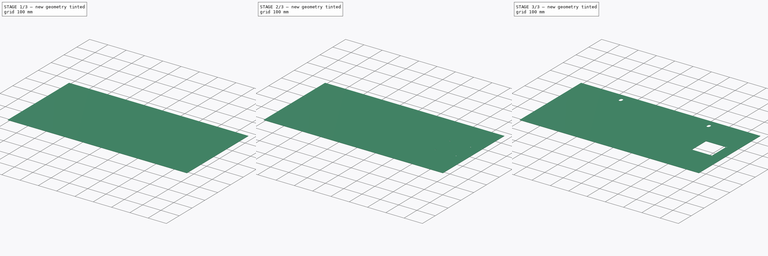
[diagram: build sequence overview — one tinted view per stage of 3, left to right]
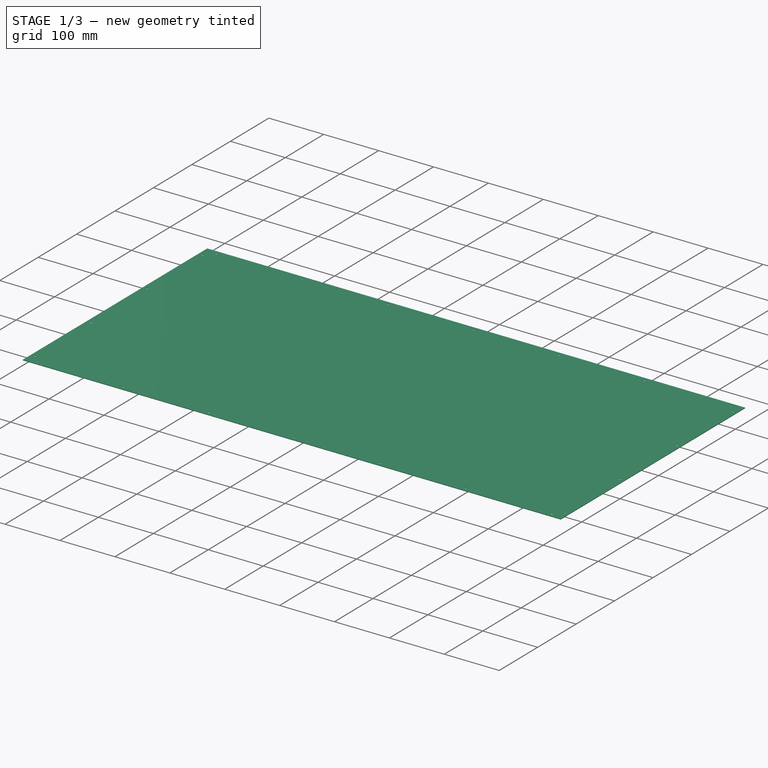
[diagram: stage 1 of 3 — iso view after this stage's code; geometry added in this stage tinted green]
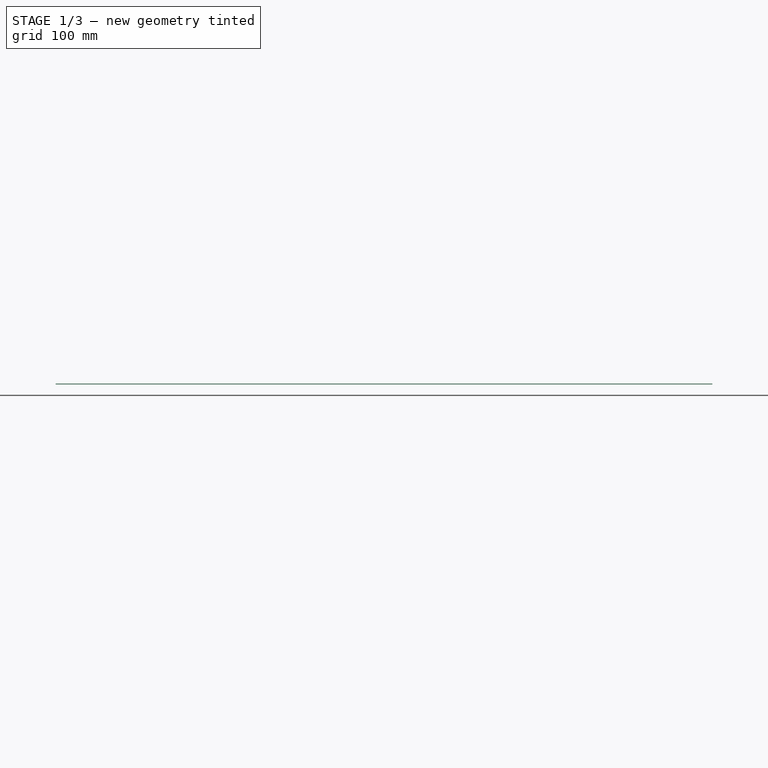
[diagram: stage 1 of 3 — front view after this stage's code; geometry added in this stage tinted green]
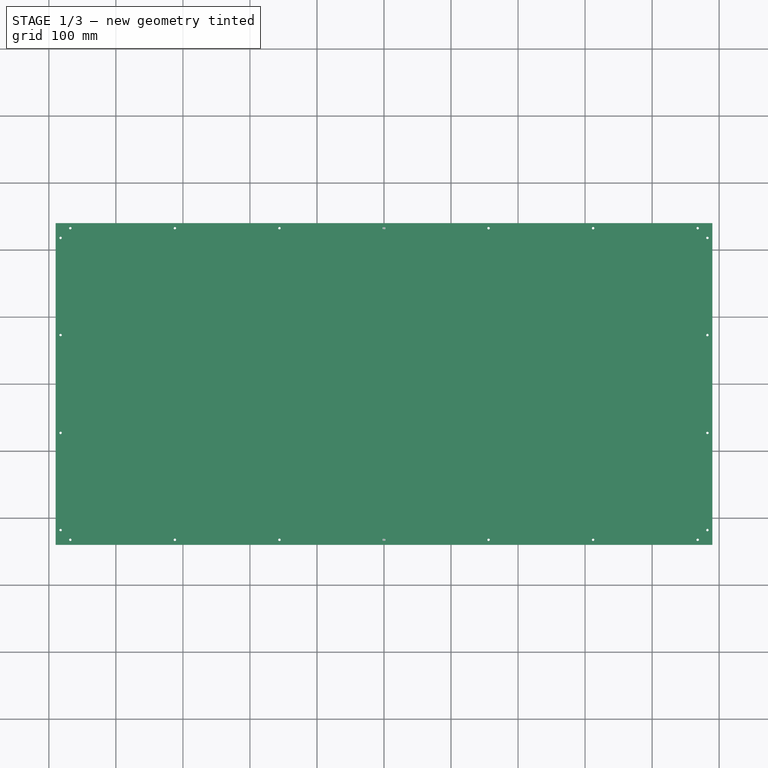
[diagram: stage 1 of 3 — top view after this stage's code; geometry added in this stage tinted green]
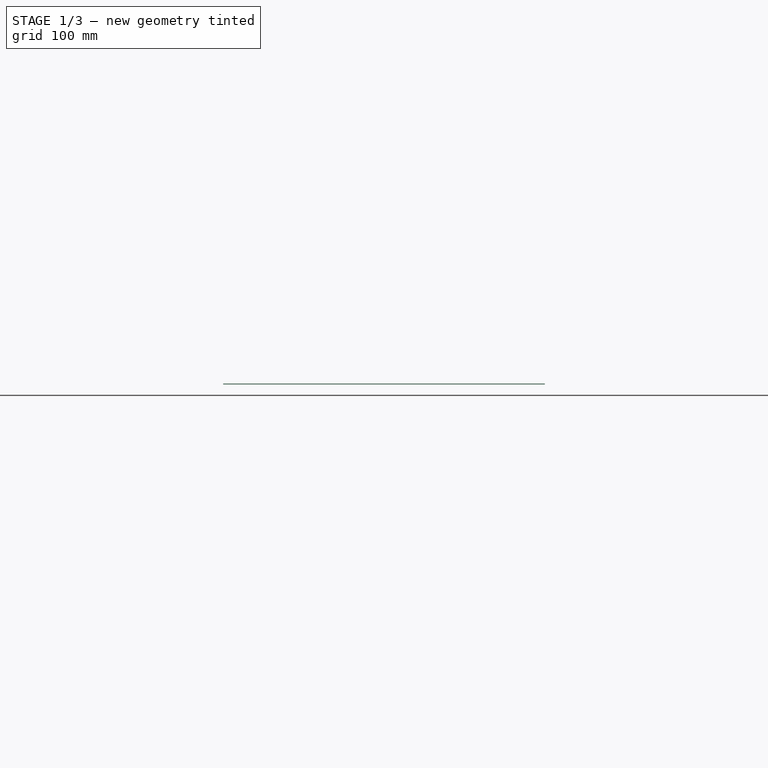
[diagram: stage 1 of 3 — right view after this stage's code; geometry added in this stage tinted green]
FCSTD DOCUMENT  (FreeCAD 0.20R29603 (Git))
Label: RearPanel_Clean
License: All rights reserved
LicenseURL: http://en.wikipedia.org/wiki/All_rights_reserved
objects: Sketcher::SketchObject×5, PartDesign::Pocket×4, PartDesign::SubShapeBinder×3, PartDesign::Pad×1, PartDesign::Body×1
note: 19 computed .brp shape members not serialized (recipe doc carries the construction recipe); baked Part::Feature solids carry a one-line shape summary decoded from their .brp

FEATURE [Sketcher::SketchObject] Sketch
  FullyConstrained = true
  MapMode = 5
  Support = -> [XY_Plane]
  sketch-geometry (4):
    g0: LineSegment StartX=-490 StartY=240 StartZ=0 EndX=490 EndY=240 EndZ=0
    g1: LineSegment StartX=490 StartY=240 StartZ=0 EndX=490 EndY=-240 EndZ=0
    g2: LineSegment StartX=490 StartY=-240 StartZ=0 EndX=-490 EndY=-240 EndZ=0
    g3: LineSegment StartX=-490 StartY=-240 StartZ=0 EndX=-490 EndY=240 EndZ=0
  constraints (10):
    c: Coincident(g0,g1)
    c: Coincident(g1,g2)
    c: Coincident(g2,g3)
    c: Coincident(g3,g0)
    c: Horizontal(g2)
    c: Vertical(g1)
    c: Symmetric(g0,g2,g-1)
    c: Symmetric(g0,g0,g-2)
    c: DistanceX(g0,g0) = 980
    c: DistanceY(g2,g0) = 480
FEATURE [PartDesign::Pad] Pad  label="Face"
  Direction = (0,0,1)
  Length = 1
  Length2 = 10
  Profile = -> Sketch
  ReferenceAxis = -> Sketch [N_Axis]
  Type = 0
FEATURE [Sketcher::SketchObject] Sketch001
  ExternalGeometry = -> [Pad]
  FullyConstrained = true
  MapMode = 5
  Placement = pos=(0,0,1) rot=(0,0,1;0rad)
  Support = -> [Pad]
  sketch-geometry (22):
    g0: Circle CenterX=0 CenterY=232.5 CenterZ=0 NormalX=0 NormalY=0 NormalZ=1 AngleXU=0 Radius=1.8
    g1: Circle CenterX=156 CenterY=232.5 CenterZ=0 NormalX=0 NormalY=0 NormalZ=1 AngleXU=0 Radius=1.8
    g2: Circle CenterX=312 CenterY=232.5 CenterZ=0 NormalX=0 NormalY=0 NormalZ=1 AngleXU=0 Radius=1.8
    g3: Circle CenterX=468 CenterY=232.5 CenterZ=0 NormalX=0 NormalY=0 NormalZ=1 AngleXU=0 Radius=1.8
    g4: Circle CenterX=-156 CenterY=232.5 CenterZ=0 NormalX=0 NormalY=0 NormalZ=1 AngleXU=0 Radius=1.8
    g5: Circle CenterX=-312 CenterY=232.5 CenterZ=0 NormalX=0 NormalY=0 NormalZ=1 AngleXU=0 Radius=1.8
    g6: Circle CenterX=-468 CenterY=232.5 CenterZ=0 NormalX=0 NormalY=0 NormalZ=1 AngleXU=0 Radius=1.8
    g7: Circle CenterX=482.5 CenterY=73 CenterZ=0 NormalX=0 NormalY=0 NormalZ=1 AngleXU=0 Radius=1.8
    g8: Circle CenterX=482.5 CenterY=218 CenterZ=0 NormalX=0 NormalY=0 NormalZ=1 AngleXU=0 Radius=1.8
    g9: Circle CenterX=-482.5 CenterY=218 CenterZ=0 NormalX=0 NormalY=0 NormalZ=1 AngleXU=0 Radius=1.8
    g10: Circle CenterX=-482.5 CenterY=73 CenterZ=0 NormalX=0 NormalY=0 NormalZ=1 AngleXU=0 Radius=1.8
    g11: Circle CenterX=-468 CenterY=-232.5 CenterZ=0 NormalX=0 NormalY=0 NormalZ=1 AngleXU=0 Radius=1.8
    g12: Circle CenterX=-312 CenterY=-232.5 CenterZ=0 NormalX=0 NormalY=0 NormalZ=1 AngleXU=0 Radius=1.8
    g13: Circle CenterX=-156 CenterY=-232.5 CenterZ=0 NormalX=0 NormalY=0 NormalZ=1 AngleXU=0 Radius=1.8
    g14: Circle CenterX=0 CenterY=-232.5 CenterZ=0 NormalX=0 NormalY=0 NormalZ=1 AngleXU=0 Radius=1.8
    g15: Circle CenterX=156 CenterY=-232.5 CenterZ=0 NormalX=0 NormalY=0 NormalZ=1 AngleXU=0 Radius=1.8
    g16: Circle CenterX=312 CenterY=-232.5 CenterZ=0 NormalX=0 NormalY=0 NormalZ=1 AngleXU=0 Radius=1.8
    g17: Circle CenterX=468 CenterY=-232.5 CenterZ=0 NormalX=0 NormalY=0 NormalZ=1 AngleXU=0 Radius=1.8
    g18: Circle CenterX=482.5 CenterY=-218 CenterZ=0 NormalX=0 NormalY=0 NormalZ=1 AngleXU=0 Radius=1.8
    g19: Circle CenterX=-482.5 CenterY=-218 CenterZ=0 NormalX=0 NormalY=0 NormalZ=1 AngleXU=0 Radius=1.8
    g20: Circle CenterX=482.5 CenterY=-73 CenterZ=0 NormalX=0 NormalY=0 NormalZ=1 AngleXU=0 Radius=1.8
    g21: Circle CenterX=-482.5 CenterY=-73 CenterZ=0 NormalX=0 NormalY=0 NormalZ=1 AngleXU=0 Radius=1.8
  constraints (66):
    c: PointOnObject(g0,g-2)
    c: DistanceY(g0,g-5) = 7.5
    c: Diameter(g0) = 3.6
    c: Horizontal(g1,g0)
    c: Equal(g1,g0)
    c: DistanceX(g0,g1) = 156
    c: Horizontal(g2,g1)
    c: Equal(g2,g1)
    c: DistanceX(g1,g2) = 156
    c: Horizontal(g3,g2)
    c: Equal(g2,g3)
    c: DistanceX(g2,g3) = 156
    c: Equal(g5,g4)
    c: Equal(g5,g6)
    c: Horizontal(g4,g0)
    c: Horizontal(g4,g5)
    c: Horizontal(g5,g6)
    c: DistanceX(g4,g0) = 156
    c: DistanceX(g5,g4) = 156
    c: DistanceX(g6,g5) = 156
    c: DistanceX(g7,g-5) = 7.5
    c: Diameter(g7) = 3.6
    c: Vertical(g7,g8)
    c: Equal(g8,g7)
    c: Diameter(g10) = 3.6
    c: Equal(g9,g10)
    c: DistanceX(g-4,g10) = 7.5
    c: Vertical(g9,g10)
    c: DistanceY(g10,g9) = 145
    c: Diameter(g14) = 3.6
    c: Equal(g15,g14)
    c: Equal(g16,g15)
    c: Equal(g16,g17)
    c: Equal(g12,g13)
    c: Equal(g12,g11)
    c: Horizontal(g11,g12)
    c: DistanceX(g11,g12) = 156
    c: Horizontal(g12,g13)
    c: DistanceX(g12,g13) = 156
    c: Horizontal(g13,g14)
    c: DistanceX(g13,g14) = 156
    c: Horizontal(g14,g15)
    c: DistanceX(g14,g15) = 156
    c: Horizontal(g15,g16)
    c: DistanceX(g15,g16) = 156
    c: Horizontal(g16,g17)
    c: DistanceX(g16,g17) = 156
    c: Vertical(g7,g18)
    c: Equal(g18,g7)
    c: DistanceY(g-6,g14) = 7.5
    c: Equal(g0,g4)
    c: PointOnObject(g14,g-2)
    c: Equal(g14,g13)
    c: DistanceY(g9,g-4) = 22
    c: DistanceY(g-6,g19) = 22
    c: DistanceY(g8,g-5) = 22
    c: DistanceY(g7,g8) = 145
    c: DistanceY(g-6,g18) = 22
    c: Equal(g7,g20)
    c: Vertical(g20,g7)
    c: DistanceY(g18,g20) = 145
    c: Equal(g10,g21)
    c: Equal(g21,g19)
    c: Vertical(g10,g21)
    c: Vertical(g21,g19)
    c: DistanceY(g19,g21) = 145
FEATURE [PartDesign::Pocket] Pocket  label="FurosFechamento"
  BaseFeature = -> Pad
  Direction = (0,0,-1)
  Length = 5
  Length2 = 5
  Profile = -> Sketch001
  ReferenceAxis = -> Sketch001 [N_Axis]
  Type = 1
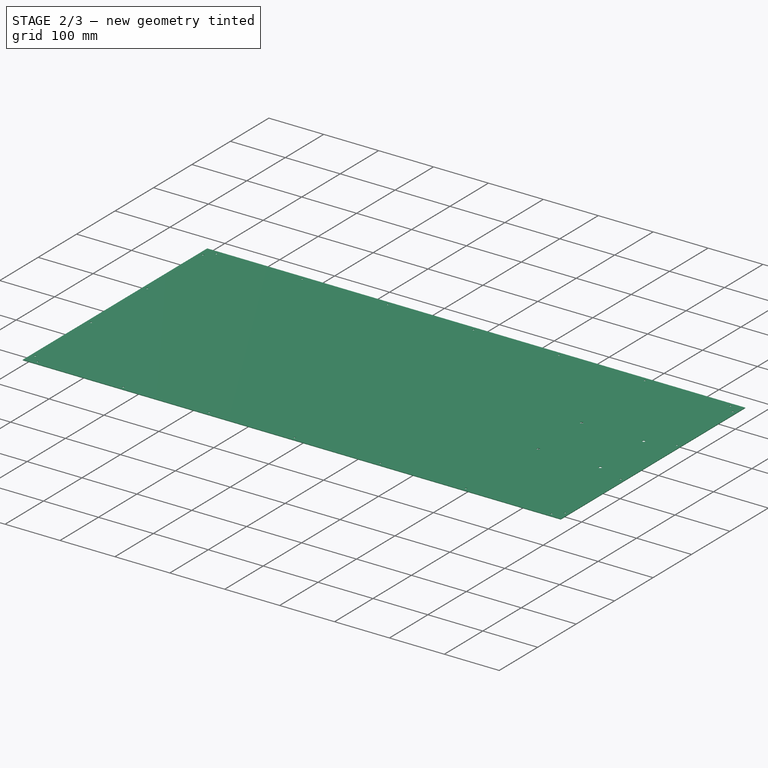
[diagram: stage 2 of 3 — iso view after this stage's code; geometry added in this stage tinted green]
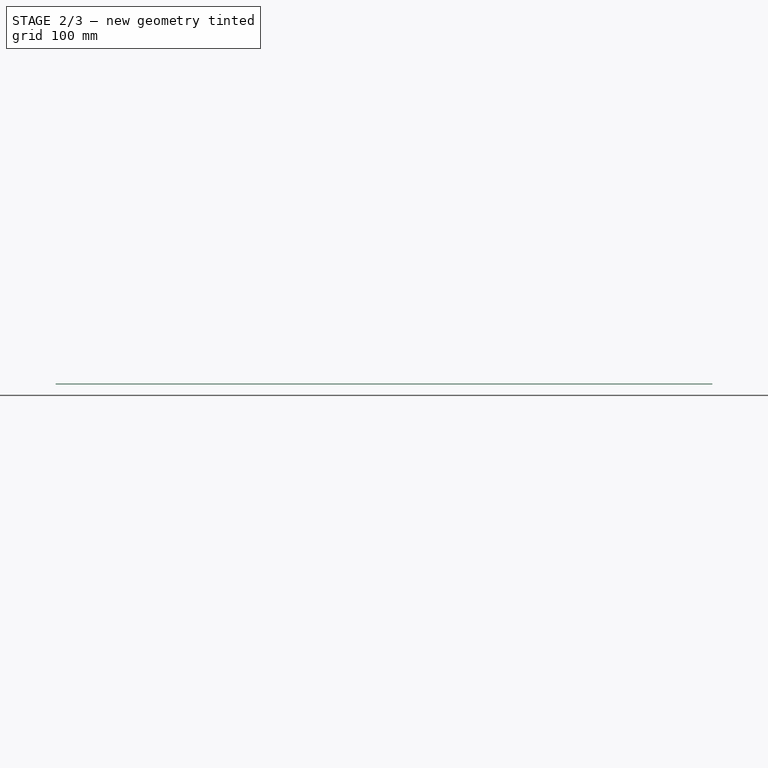
[diagram: stage 2 of 3 — front view after this stage's code; geometry added in this stage tinted green]
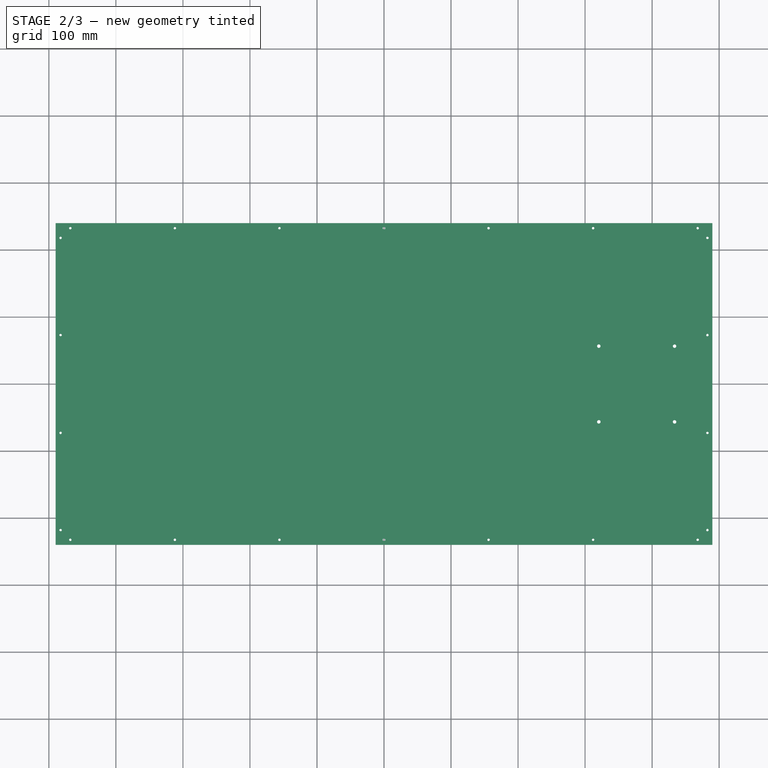
[diagram: stage 2 of 3 — top view after this stage's code; geometry added in this stage tinted green]
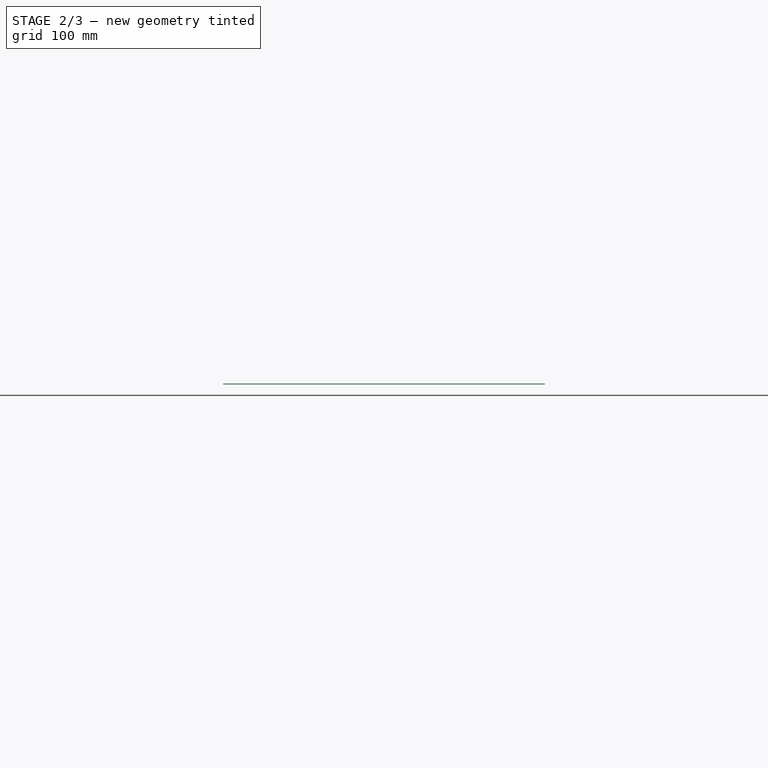
[diagram: stage 2 of 3 — right view after this stage's code; geometry added in this stage tinted green]
FEATURE [PartDesign::SubShapeBinder] Binder  label="BinderRasgo"
  BindCopyOnChange = 0
  BindMode = 0
  ClaimChildren = false
  Context = -> Body [Binder.]
  Fuse = false
  MakeFace = true
  OffsetFill = false
  OffsetIntersection = false
  OffsetJoinType = 0
  OffsetOpenResult = false
  PartialLoad = false
  Relative = true
  _Version = 2
FEATURE [Sketcher::SketchObject] Sketch029
  ExternalGeometry = -> [Binder]
  FullyConstrained = true
  MapMode = 5
  Placement = pos=(0,0,1) rot=(0,0,1;0rad)
  Support = -> [Pocket]
  sketch-geometry (8):
    g0: ArcOfCircle CenterX=327 CenterY=50 CenterZ=0 NormalX=0 NormalY=0 NormalZ=1 AngleXU=0 Radius=5 StartAngle=1.5708 EndAngle=3.14159
    g1: ArcOfCircle CenterX=427 CenterY=50 CenterZ=0 NormalX=0 NormalY=0 NormalZ=1 AngleXU=0 Radius=5 StartAngle=5e-16 EndAngle=1.5708
    g2: ArcOfCircle CenterX=427 CenterY=-50 CenterZ=0 NormalX=0 NormalY=0 NormalZ=1 AngleXU=0 Radius=5 StartAngle=4.71239 EndAngle=6.28319
    g3: ArcOfCircle CenterX=327 CenterY=-50 CenterZ=0 NormalX=0 NormalY=0 NormalZ=1 AngleXU=0 Radius=5 StartAngle=3.14159 EndAngle=4.71239
    g4: LineSegment StartX=322 StartY=-50 StartZ=0 EndX=322 EndY=50 EndZ=0
    g5: LineSegment StartX=327 StartY=-55 StartZ=0 EndX=427 EndY=-55 EndZ=0
    g6: LineSegment StartX=432 StartY=-50 StartZ=0 EndX=432 EndY=50 EndZ=0
    g7: LineSegment StartX=327 StartY=55 StartZ=0 EndX=427 EndY=55 EndZ=0
  constraints (19):
    c: Coincident(g0,g-3)
    c: Coincident(g2,g-4)
    c: Equal(g0,g1)
    c: Equal(g1,g2)
    c: Equal(g2,g3)
    c: Horizontal(g2,g3)
    c: Vertical(g3,g0)
    c: Horizontal(g0,g1)
    c: Vertical(g1,g2)
    c: Vertical(g4)
    c: Diameter(g0) = 10
    c: Tangent(g2,g6) = -1.5708
    c: Tangent(g2,g5) = -1.5708
    c: Tangent(g1,g6) = -1.5708
    c: Coincident(g0,g4)
    c: Tangent(g0,g7) = 1.5708
    c: Tangent(g3,g5) = -1.5708
    c: Tangent(g3,g4) = 1.5708
    c: Tangent(g1,g7) = 1.5708
FEATURE [PartDesign::SubShapeBinder] Binder002  label="BinderFurosPocket"
  BindCopyOnChange = 0
  BindMode = 0
  ClaimChildren = false
  Context = -> Body [Binder002.]
  Fuse = false
  MakeFace = true
  OffsetFill = false
  OffsetIntersection = false
  OffsetJoinType = 0
  OffsetOpenResult = false
  PartialLoad = false
  Relative = true
  _Version = 2
FEATURE [Sketcher::SketchObject] Sketch030
  ExternalGeometry = -> [Binder002]
  FullyConstrained = false
  MapMode = 5
  Placement = pos=(0,0,1) rot=(0,0,1;0rad)
  sketch-geometry (4):
    g0: Circle CenterX=320.5 CenterY=-56.5 CenterZ=0 NormalX=0 NormalY=0 NormalZ=1 AngleXU=0 Radius=2.6
    g1: Circle CenterX=433.5 CenterY=-56.5 CenterZ=0 NormalX=0 NormalY=0 NormalZ=1 AngleXU=0 Radius=2.6
    g2: Circle CenterX=320.5 CenterY=56.5 CenterZ=0 NormalX=0 NormalY=0 NormalZ=1 AngleXU=0 Radius=2.6
    g3: Circle CenterX=433.5 CenterY=56.5 CenterZ=0 NormalX=0 NormalY=0 NormalZ=1 AngleXU=0 Radius=2.6
  constraints (7):
    c: Coincident(g0,g-5)
    c: Coincident(g1,g-6)
    c: Coincident(g2,g-4)
    c: Coincident(g3,g-3)
    c: Equal(g3,g2)
    c: Equal(g2,g1)
    c: Equal(g1,g0)
FEATURE [PartDesign::Pocket] Pocket018
  BaseFeature = -> Pocket
  Direction = (0,0,-1)
  Length = 5
  Length2 = 5
  Profile = -> Sketch030
  ReferenceAxis = -> Sketch030 [N_Axis]
  Type = 1
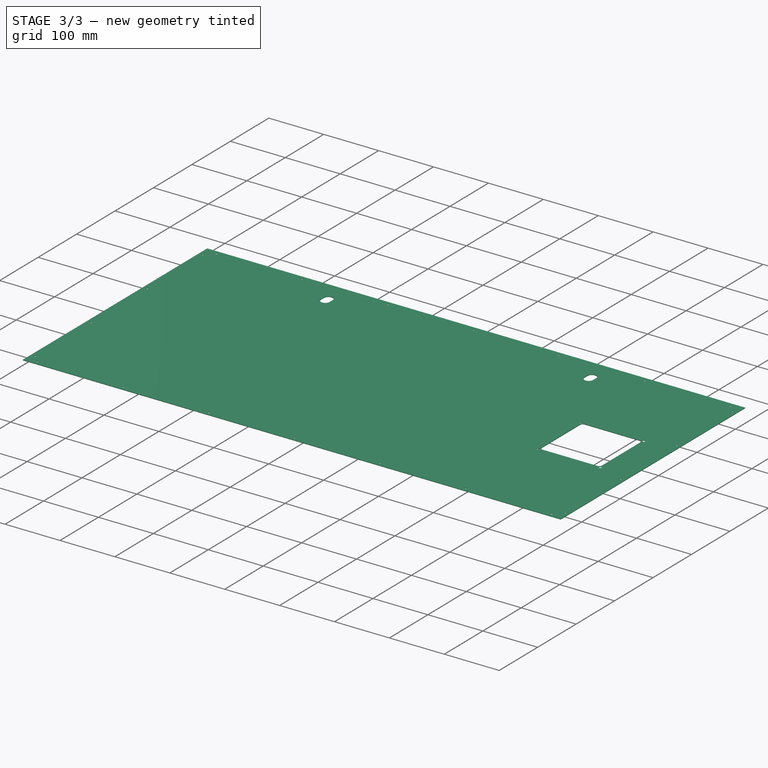
[diagram: stage 3 of 3 — iso view after this stage's code; geometry added in this stage tinted green]
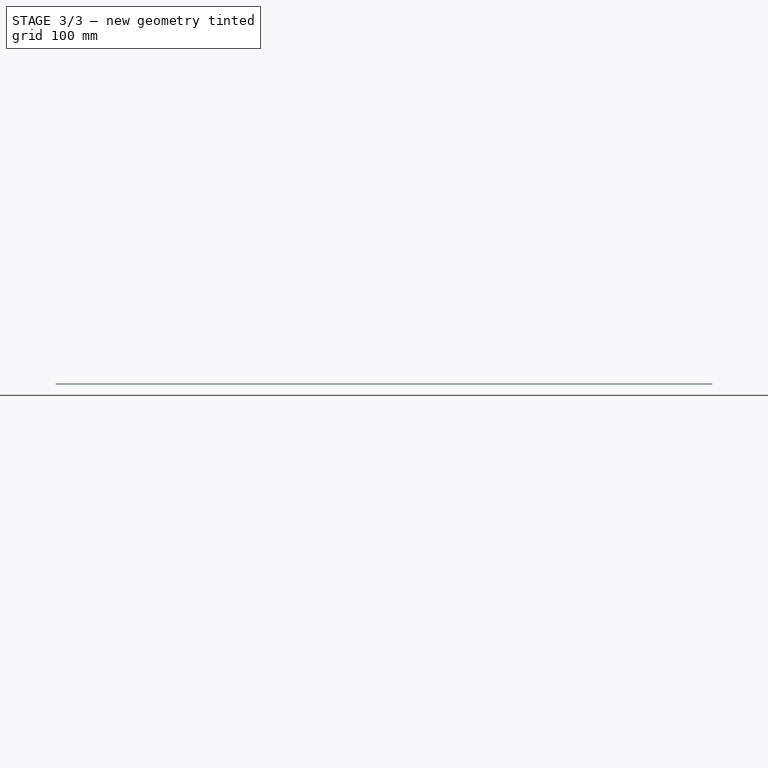
[diagram: stage 3 of 3 — front view after this stage's code; geometry added in this stage tinted green]
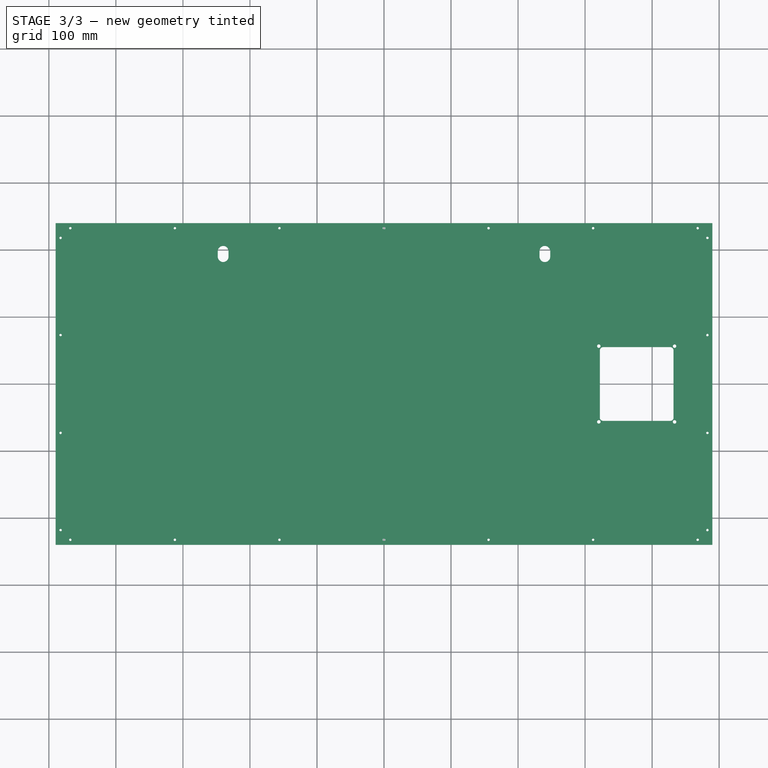
[diagram: stage 3 of 3 — top view after this stage's code; geometry added in this stage tinted green]
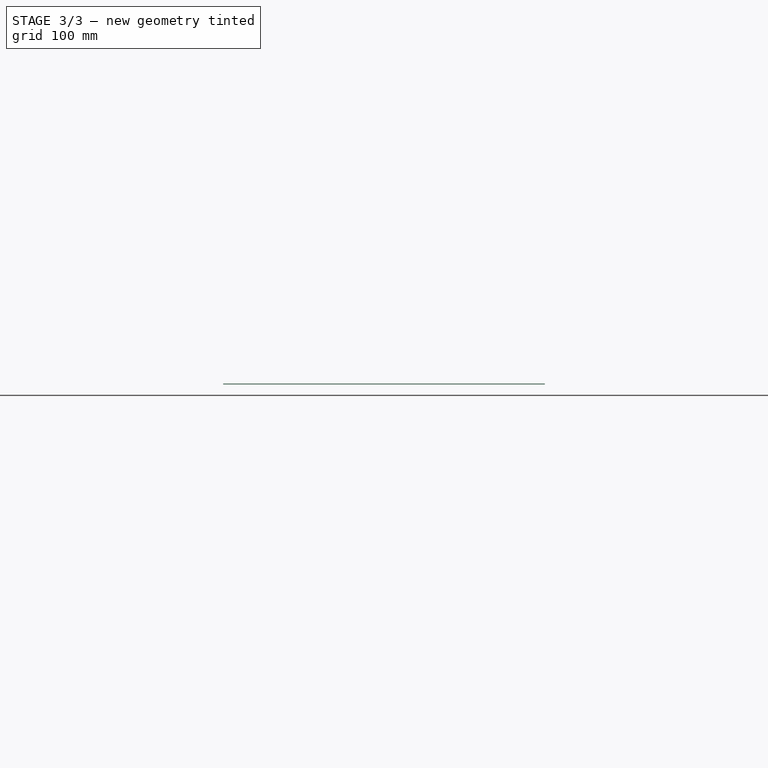
[diagram: stage 3 of 3 — right view after this stage's code; geometry added in this stage tinted green]
FEATURE [PartDesign::Pocket] Pocket019
  BaseFeature = -> Pocket018
  Direction = (0,0,-1)
  Length = 5
  Length2 = 5
  Profile = -> Sketch029
  ReferenceAxis = -> Sketch029 [N_Axis]
  Type = 1
FEATURE [PartDesign::SubShapeBinder] Binder003  label="BinderHangHoles"
  BindCopyOnChange = 0
  BindMode = 0
  ClaimChildren = false
  Context = -> Body [Binder003.]
  Fuse = false
  MakeFace = true
  OffsetFill = false
  OffsetIntersection = false
  OffsetJoinType = 0
  OffsetOpenResult = false
  PartialLoad = false
  Relative = true
  _Version = 2
FEATURE [Sketcher::SketchObject] Sketch037
  ExternalGeometry = -> [Binder003]
  FullyConstrained = false
  MapMode = 5
  Placement = pos=(0,0,1) rot=(0,0,1;0rad)
  Support = -> [Pocket019]
  sketch-geometry (8):
    g0: ArcOfCircle CenterX=240 CenterY=190 CenterZ=0 NormalX=0 NormalY=0 NormalZ=1 AngleXU=0 Radius=8 StartAngle=3.14159 EndAngle=6.28319
    g1: LineSegment StartX=232 StartY=190 StartZ=0 EndX=232 EndY=198 EndZ=0
    g2: LineSegment StartX=248 StartY=190 StartZ=0 EndX=248 EndY=198 EndZ=0
    g3: ArcOfCircle CenterX=240 CenterY=198 CenterZ=0 NormalX=0 NormalY=0 NormalZ=1 AngleXU=0 Radius=8 StartAngle=5e-16 EndAngle=3.14159
    g4: LineSegment StartX=-232 StartY=190 StartZ=0 EndX=-232 EndY=198 EndZ=0
    g5: ArcOfCircle CenterX=-240 CenterY=190 CenterZ=0 NormalX=0 NormalY=0 NormalZ=1 AngleXU=0 Radius=8 StartAngle=3.14159 EndAngle=6.28319
    g6: LineSegment StartX=-248 StartY=190 StartZ=0 EndX=-248 EndY=198 EndZ=0
    g7: ArcOfCircle CenterX=-240 CenterY=198 CenterZ=0 NormalX=0 NormalY=0 NormalZ=1 AngleXU=0 Radius=8 StartAngle=8e-16 EndAngle=3.14159
  constraints (13):
    c: Vertical(g1)
    c: Coincident(g3,g1) = 1.5708
    c: Tangent(g0,g2) = -1.5708
    c: Tangent(g0,g1) = 1.5708
    c: Tangent(g3,g2) = -1.5708
    c: Tangent(g1,g3) = 1.5708
    c: Vertical(g4)
    c: Tangent(g5,g6) = 1.5708
    c: Tangent(g5,g4) = -1.5708
    c: Tangent(g7,g6) = 1.5708
    c: Tangent(g7,g4) = -1.5708
    c: Diameter(g5) = 16
    c: Diameter(g0) = 16
FEATURE [PartDesign::Pocket] Pocket022  label="HangHoles"
  BaseFeature = -> Pocket019
  Direction = (0,0,-1)
  Length = 5
  Length2 = 5
  Profile = -> Sketch037
  ReferenceAxis = -> Sketch037 [N_Axis]
  Type = 1
FEATURE [PartDesign::Body] Body
  Group = -> [Sketch,Pad,Sketch001,Pocket,Binder,Sketch029,Binder002,Sketch030,Pocket018,Pocket019,Binder003,Sketch037,Pocket022]
  Origin = -> Origin
  Tip = -> Pocket022
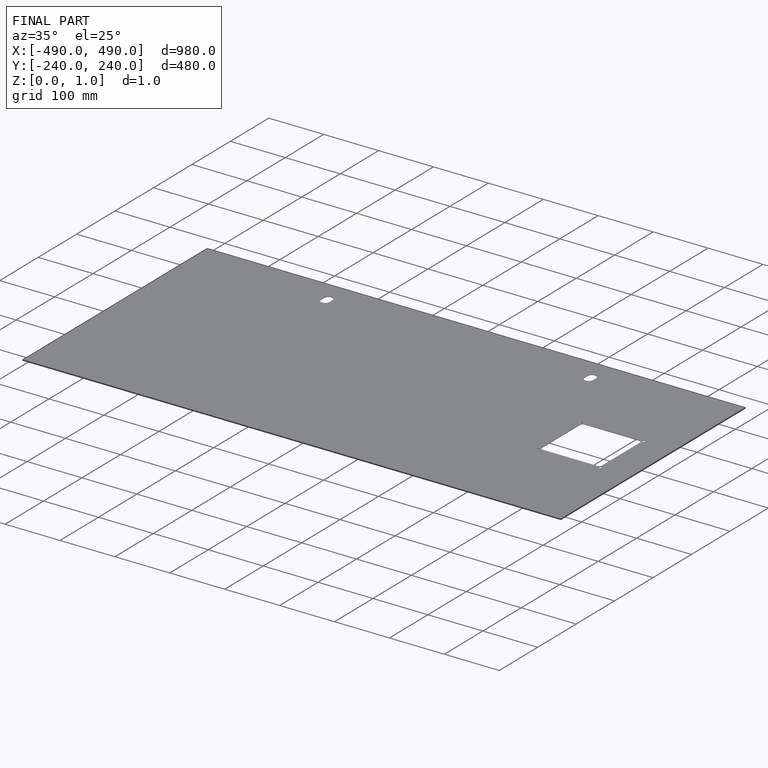
[diagram: finished part — iso view with bounding-box wireframe]
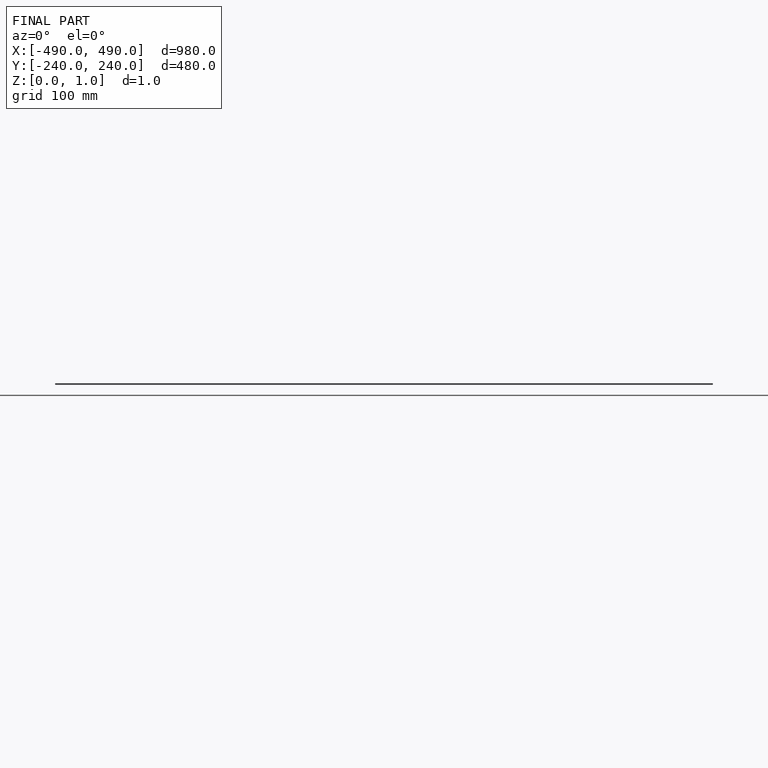
[diagram: finished part — front view with bounding-box wireframe]
